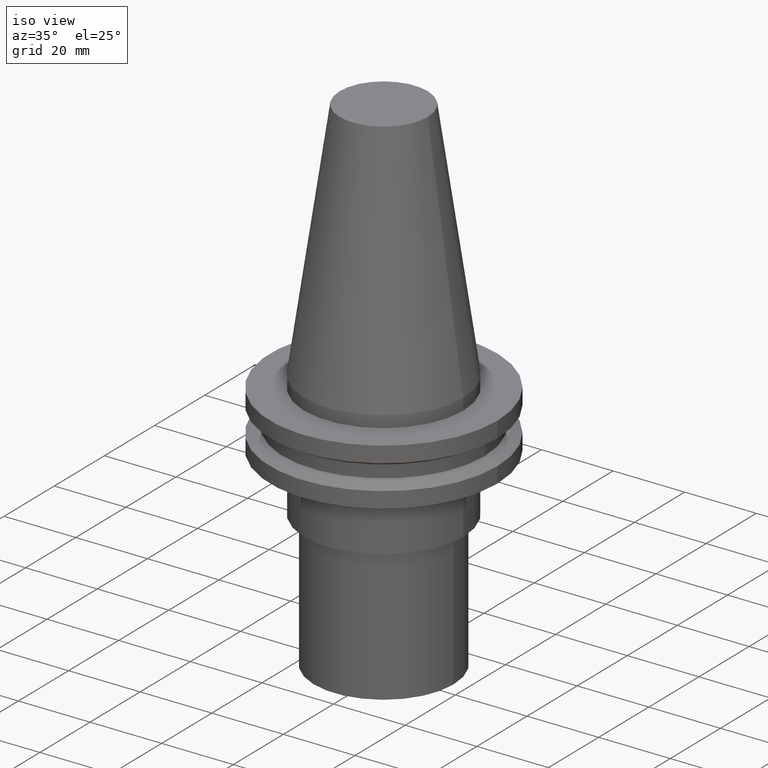
[diagram: clean part render]
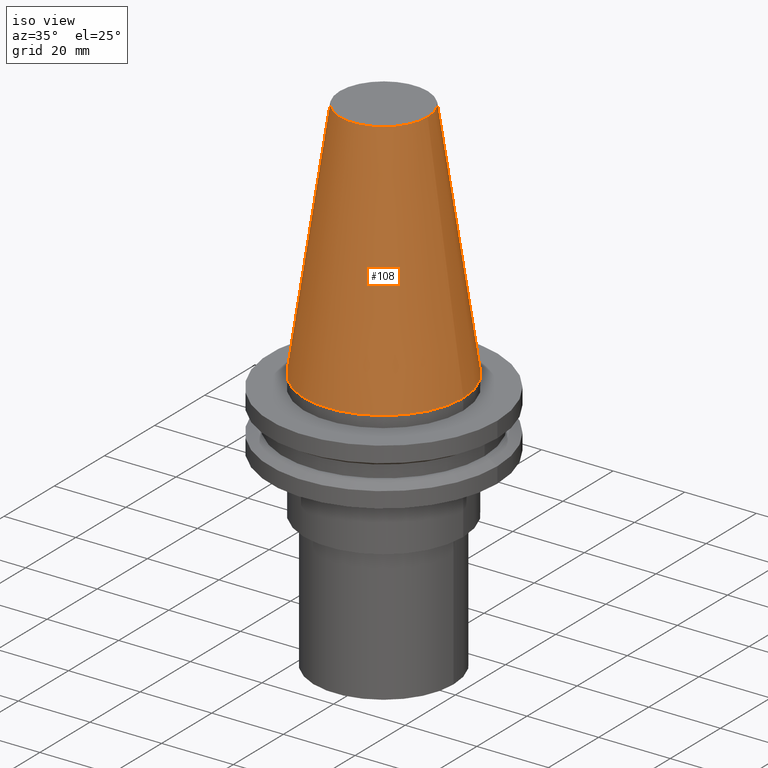
[diagram: tour spotlight — one face highlighted and labeled with its STEP entity id]
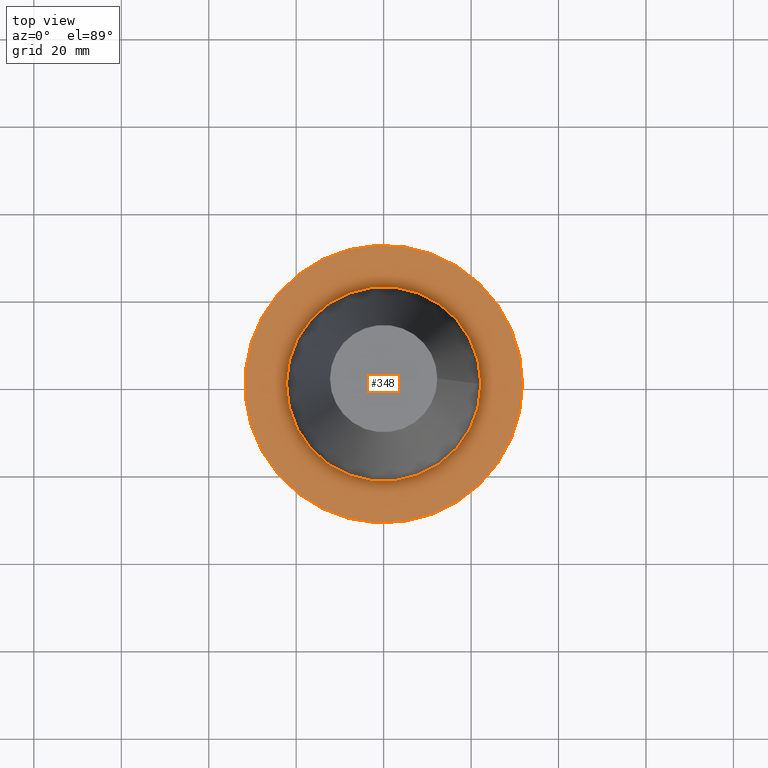
[diagram: tour spotlight — one face highlighted and labeled with its STEP entity id]
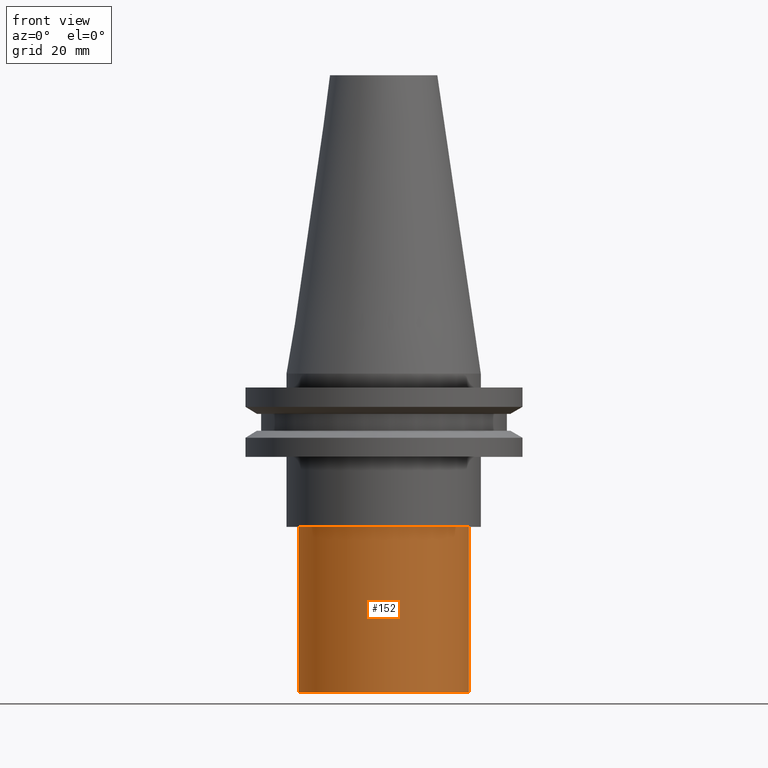
[diagram: tour spotlight — one face highlighted and labeled with its STEP entity id]
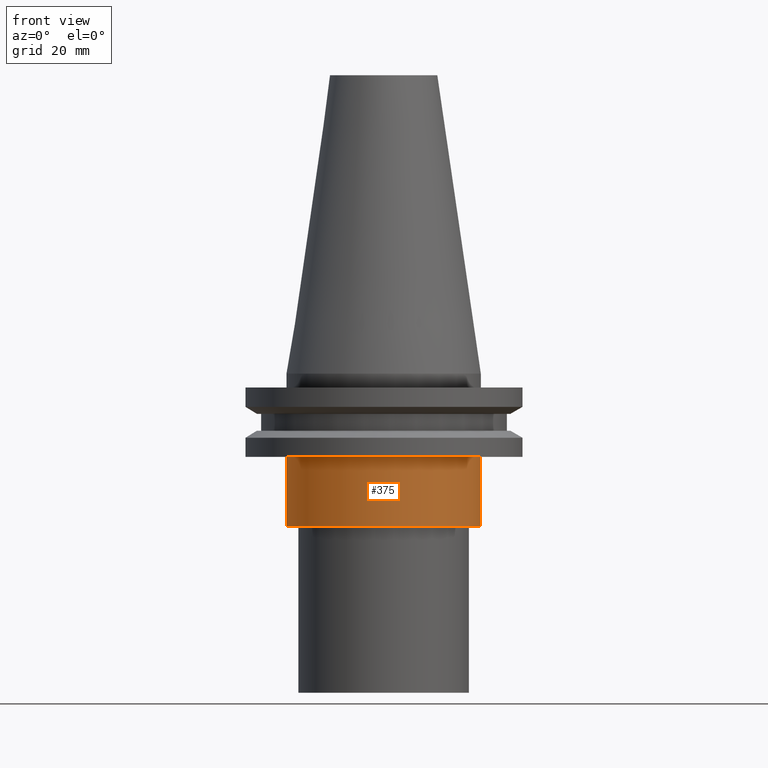
[diagram: tour spotlight — one face highlighted and labeled with its STEP entity id]
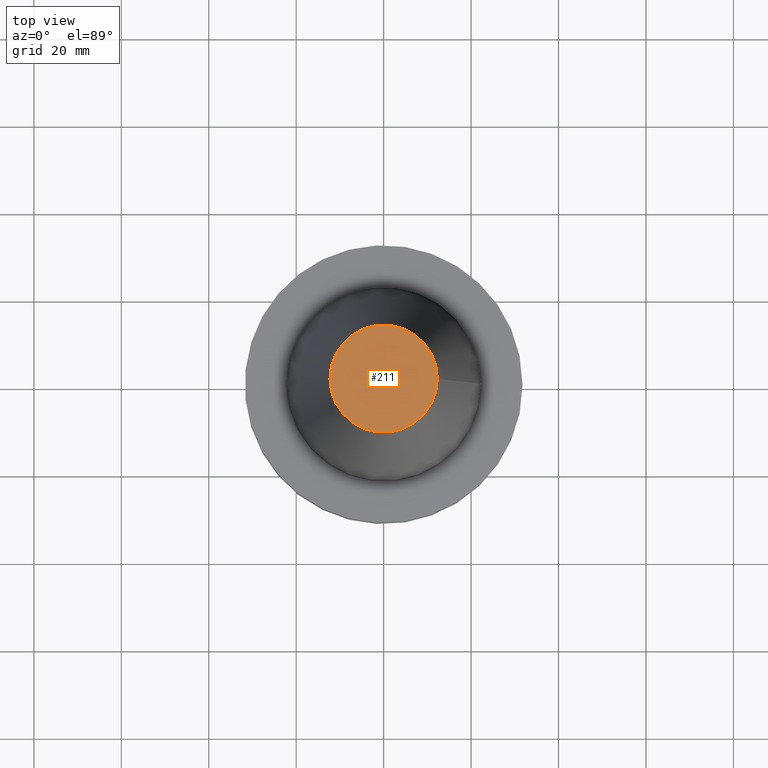
[diagram: tour spotlight — one face highlighted and labeled with its STEP entity id]
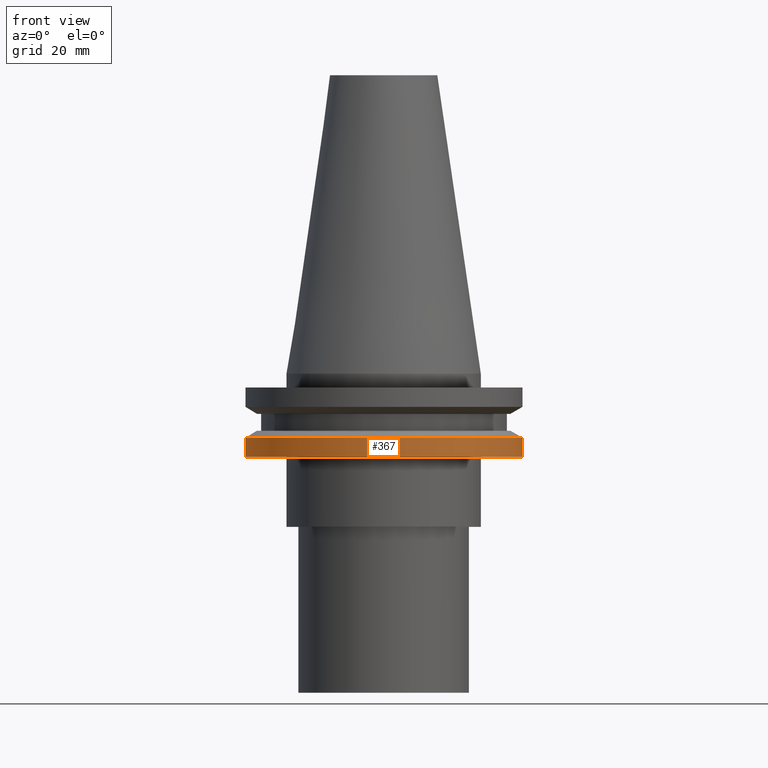
[diagram: tour spotlight — one face highlighted and labeled with its STEP entity id]
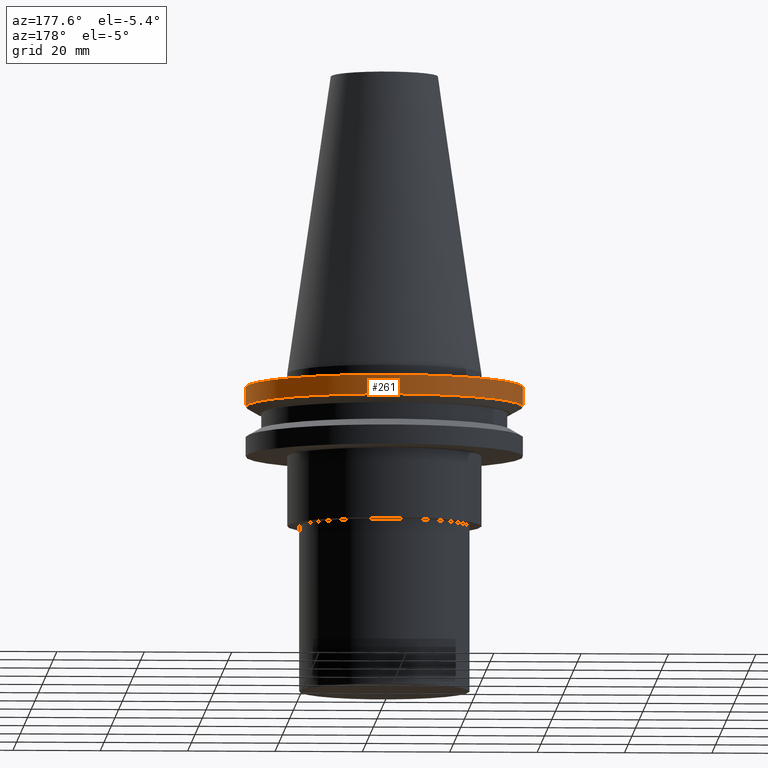
[diagram: tour spotlight — one face highlighted and labeled with its STEP entity id]
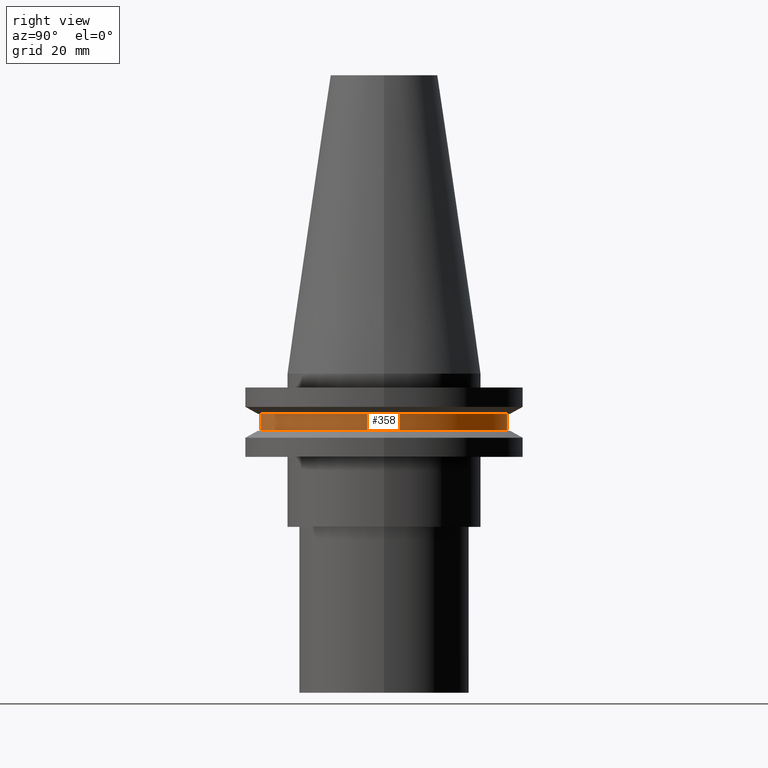
[diagram: tour spotlight — one face highlighted and labeled with its STEP entity id]
A machine part: a face-by-face anatomy tour. The part has 16 B-rep faces; the first image is the clean iso view, then the 8 largest visible faces are spotlighted one at a time (largest first), each with its STEP entity span.

Face 1 — iso view, entity #108. In plain terms, the highlighted conical surface has half-angle 8.297 deg.
Definition (entity closure, byte-faithful):
#2 = FACE_BOUND ( 'NONE', #115, .T. ) ;
#4 = DIRECTION ( 'NONE',  ( 0.000000000000000000, 0.000000000000000000, -1.000000000000000000 ) ) ;
#5 = CIRCLE ( 'NONE', #65, 12.27178102086201150 ) ;
#32 = CARTESIAN_POINT ( 'NONE',  ( 12.27178102086201150, 0.000000000000000000, 68.25000000000000000 ) ) ;
#51 = CONICAL_SURFACE ( 'NONE', #383, 22.22500000000000142, 0.1448138465474119174 ) ;
#65 = AXIS2_PLACEMENT_3D ( 'NONE', #220, #341, #69 ) ;
#69 = DIRECTION ( 'NONE',  ( 1.000000000000000000, 0.000000000000000000, 0.000000000000000000 ) ) ;
#82 = EDGE_LOOP ( 'NONE', ( #198 ) ) ;
#108 = ADVANCED_FACE ( 'NONE', ( #2, #275 ), #51, .T. ) ;
#115 = EDGE_LOOP ( 'NONE', ( #325 ) ) ;
#139 = VERTEX_POINT ( 'NONE', #171 ) ;
#151 = DIRECTION ( 'NONE',  ( -0.000000000000000000, -0.000000000000000000, 1.000000000000000000 ) ) ;
#164 = EDGE_CURVE ( 'NONE', #139, #139, #190, .T. ) ;
#165 = VERTEX_POINT ( 'NONE', #32 ) ;
#171 = CARTESIAN_POINT ( 'NONE',  ( 22.22500000000000142, 0.000000000000000000, 0.000000000000000000 ) ) ;
#190 = CIRCLE ( 'NONE', #393, 22.22500000000000142 ) ;
#198 = ORIENTED_EDGE ( 'NONE', *, *, #164, .T. ) ;
#210 = CARTESIAN_POINT ( 'NONE',  ( 0.000000000000000000, 0.000000000000000000, 0.000000000000000000 ) ) ;
#214 = DIRECTION ( 'NONE',  ( 1.000000000000000000, 0.000000000000000000, 0.000000000000000000 ) ) ;
#220 = CARTESIAN_POINT ( 'NONE',  ( 0.000000000000000000, 0.000000000000000000, 68.25000000000000000 ) ) ;
#230 = EDGE_CURVE ( 'NONE', #165, #165, #5, .T. ) ;
#248 = DIRECTION ( 'NONE',  ( -1.000000000000000000, 0.000000000000000000, 0.000000000000000000 ) ) ;
#275 = FACE_OUTER_BOUND ( 'NONE', #82, .T. ) ;
#325 = ORIENTED_EDGE ( 'NONE', *, *, #230, .F. ) ;
#341 = DIRECTION ( 'NONE',  ( -0.000000000000000000, -0.000000000000000000, 1.000000000000000000 ) ) ;
#366 = CARTESIAN_POINT ( 'NONE',  ( 0.000000000000000000, 0.000000000000000000, 0.000000000000000000 ) ) ;
#383 = AXIS2_PLACEMENT_3D ( 'NONE', #366, #4, #248 ) ;
#393 = AXIS2_PLACEMENT_3D ( 'NONE', #210, #151, #214 ) ;

Face 2 — top view, entity #348. In plain terms, the highlighted planar face has unit normal (0, 0, -1).
Definition (entity closure, byte-faithful):
#7 = DIRECTION ( 'NONE',  ( 1.000000000000000000, 0.000000000000000000, 0.000000000000000000 ) ) ;
#42 = CIRCLE ( 'NONE', #128, 31.75000000000000000 ) ;
#61 = EDGE_CURVE ( 'NONE', #324, #324, #42, .T. ) ;
#80 = EDGE_LOOP ( 'NONE', ( #231 ) ) ;
#99 = CIRCLE ( 'NONE', #308, 22.22500000000000142 ) ;
#104 = CARTESIAN_POINT ( 'NONE',  ( 0.000000000000000000, 0.000000000000000000, -3.174999999999997158 ) ) ;
#106 = FACE_BOUND ( 'NONE', #110, .T. ) ;
#110 = EDGE_LOOP ( 'NONE', ( #382 ) ) ;
#128 = AXIS2_PLACEMENT_3D ( 'NONE', #304, #184, #7 ) ;
#131 = FACE_OUTER_BOUND ( 'NONE', #80, .T. ) ;
#155 = AXIS2_PLACEMENT_3D ( 'NONE', #281, #376, #283 ) ;
#163 = DIRECTION ( 'NONE',  ( -0.000000000000000000, -0.000000000000000000, 1.000000000000000000 ) ) ;
#184 = DIRECTION ( 'NONE',  ( -0.000000000000000000, -0.000000000000000000, 1.000000000000000000 ) ) ;
#231 = ORIENTED_EDGE ( 'NONE', *, *, #61, .T. ) ;
#269 = CARTESIAN_POINT ( 'NONE',  ( 22.22500000000000142, 0.000000000000000000, -3.174999999999997158 ) ) ;
#281 = CARTESIAN_POINT ( 'NONE',  ( 0.000000000000000000, 31.75000000000000000, -3.174999999999993605 ) ) ;
#283 = DIRECTION ( 'NONE',  ( -1.000000000000000000, 0.000000000000000000, -0.000000000000000000 ) ) ;
#284 = PLANE ( 'NONE',  #155 ) ;
#304 = CARTESIAN_POINT ( 'NONE',  ( 0.000000000000000000, 0.000000000000000000, -3.174999999999997158 ) ) ;
#308 = AXIS2_PLACEMENT_3D ( 'NONE', #104, #163, #380 ) ;
#319 = CARTESIAN_POINT ( 'NONE',  ( 31.75000000000000000, 0.000000000000000000, -3.174999999999997158 ) ) ;
#324 = VERTEX_POINT ( 'NONE', #319 ) ;
#329 = EDGE_CURVE ( 'NONE', #381, #381, #99, .T. ) ;
#348 = ADVANCED_FACE ( 'NONE', ( #106, #131 ), #284, .F. ) ;
#376 = DIRECTION ( 'NONE',  ( 0.000000000000000000, 0.000000000000000000, -1.000000000000000000 ) ) ;
#380 = DIRECTION ( 'NONE',  ( 1.000000000000000000, 0.000000000000000000, 0.000000000000000000 ) ) ;
#381 = VERTEX_POINT ( 'NONE', #269 ) ;
#382 = ORIENTED_EDGE ( 'NONE', *, *, #329, .F. ) ;

Face 3 — front view, entity #152. In plain terms, the highlighted cylindrical surface (bore or boss wall) has radius 19.5 mm, axis along (-0, -0, 1).
Definition (entity closure, byte-faithful):
#12 = AXIS2_PLACEMENT_3D ( 'NONE', #288, #46, #253 ) ;
#19 = CIRCLE ( 'NONE', #299, 19.49999999999999289 ) ;
#35 = FACE_OUTER_BOUND ( 'NONE', #53, .T. ) ;
#46 = DIRECTION ( 'NONE',  ( -0.000000000000000000, -0.000000000000000000, 1.000000000000000000 ) ) ;
#53 = EDGE_LOOP ( 'NONE', ( #318 ) ) ;
#54 = VERTEX_POINT ( 'NONE', #111 ) ;
#64 = DIRECTION ( 'NONE',  ( 1.000000000000000000, 0.000000000000000000, 0.000000000000000000 ) ) ;
#97 = CARTESIAN_POINT ( 'NONE',  ( 0.000000000000000000, 0.000000000000000000, 0.000000000000000000 ) ) ;
#100 = EDGE_CURVE ( 'NONE', #54, #54, #19, .T. ) ;
#111 = CARTESIAN_POINT ( 'NONE',  ( 19.49999999999999289, 0.000000000000000000, -73.00000000000000000 ) ) ;
#152 = ADVANCED_FACE ( 'NONE', ( #35, #251 ), #364, .T. ) ;
#178 = DIRECTION ( 'NONE',  ( -0.000000000000000000, -0.000000000000000000, 1.000000000000000000 ) ) ;
#202 = CIRCLE ( 'NONE', #12, 19.49999999999999289 ) ;
#218 = EDGE_CURVE ( 'NONE', #267, #267, #202, .T. ) ;
#247 = AXIS2_PLACEMENT_3D ( 'NONE', #97, #310, #334 ) ;
#251 = FACE_OUTER_BOUND ( 'NONE', #297, .T. ) ;
#253 = DIRECTION ( 'NONE',  ( 1.000000000000000000, 0.000000000000000000, 0.000000000000000000 ) ) ;
#267 = VERTEX_POINT ( 'NONE', #355 ) ;
#278 = CARTESIAN_POINT ( 'NONE',  ( 0.000000000000000000, 0.000000000000000000, -73.00000000000000000 ) ) ;
#288 = CARTESIAN_POINT ( 'NONE',  ( 0.000000000000000000, 0.000000000000000000, -35.04999999999999716 ) ) ;
#297 = EDGE_LOOP ( 'NONE', ( #328 ) ) ;
#299 = AXIS2_PLACEMENT_3D ( 'NONE', #278, #178, #64 ) ;
#310 = DIRECTION ( 'NONE',  ( -0.000000000000000000, -0.000000000000000000, 1.000000000000000000 ) ) ;
#318 = ORIENTED_EDGE ( 'NONE', *, *, #218, .F. ) ;
#328 = ORIENTED_EDGE ( 'NONE', *, *, #100, .T. ) ;
#334 = DIRECTION ( 'NONE',  ( 1.000000000000000000, 0.000000000000000000, 0.000000000000000000 ) ) ;
#355 = CARTESIAN_POINT ( 'NONE',  ( 19.49999999999999289, 0.000000000000000000, -35.04999999999999716 ) ) ;
#364 = CYLINDRICAL_SURFACE ( 'NONE', #247, 19.49999999999999289 ) ;

Face 4 — front view, entity #375. In plain terms, the highlighted cylindrical surface (bore or boss wall) has radius 22.225 mm, axis along (-0, -0, 1).
Definition (entity closure, byte-faithful):
#6 = AXIS2_PLACEMENT_3D ( 'NONE', #21, #49, #29 ) ;
#11 = EDGE_CURVE ( 'NONE', #199, #199, #195, .T. ) ;
#21 = CARTESIAN_POINT ( 'NONE',  ( 0.000000000000000000, 0.000000000000000000, 68.25000000000000000 ) ) ;
#24 = FACE_OUTER_BOUND ( 'NONE', #354, .T. ) ;
#29 = DIRECTION ( 'NONE',  ( 1.000000000000000000, 0.000000000000000000, 0.000000000000000000 ) ) ;
#49 = DIRECTION ( 'NONE',  ( -0.000000000000000000, -0.000000000000000000, 1.000000000000000000 ) ) ;
#58 = AXIS2_PLACEMENT_3D ( 'NONE', #347, #316, #158 ) ;
#85 = CARTESIAN_POINT ( 'NONE',  ( 22.22500000000000142, 0.000000000000000000, -35.04999999999999716 ) ) ;
#118 = CYLINDRICAL_SURFACE ( 'NONE', #6, 22.22500000000000142 ) ;
#142 = CARTESIAN_POINT ( 'NONE',  ( 0.000000000000000000, 0.000000000000000000, -19.04999999999999716 ) ) ;
#158 = DIRECTION ( 'NONE',  ( 1.000000000000000000, 0.000000000000000000, 0.000000000000000000 ) ) ;
#169 = ORIENTED_EDGE ( 'NONE', *, *, #11, .F. ) ;
#195 = CIRCLE ( 'NONE', #343, 22.22500000000000142 ) ;
#199 = VERTEX_POINT ( 'NONE', #321 ) ;
#228 = CIRCLE ( 'NONE', #58, 22.22500000000000142 ) ;
#239 = EDGE_CURVE ( 'NONE', #389, #389, #228, .T. ) ;
#268 = ORIENTED_EDGE ( 'NONE', *, *, #239, .T. ) ;
#316 = DIRECTION ( 'NONE',  ( -0.000000000000000000, -0.000000000000000000, 1.000000000000000000 ) ) ;
#320 = DIRECTION ( 'NONE',  ( 1.000000000000000000, 0.000000000000000000, 0.000000000000000000 ) ) ;
#321 = CARTESIAN_POINT ( 'NONE',  ( 22.22500000000000142, 0.000000000000000000, -19.04999999999999716 ) ) ;
#326 = FACE_OUTER_BOUND ( 'NONE', #356, .T. ) ;
#343 = AXIS2_PLACEMENT_3D ( 'NONE', #142, #352, #320 ) ;
#347 = CARTESIAN_POINT ( 'NONE',  ( 0.000000000000000000, 0.000000000000000000, -35.04999999999999716 ) ) ;
#352 = DIRECTION ( 'NONE',  ( -0.000000000000000000, -0.000000000000000000, 1.000000000000000000 ) ) ;
#354 = EDGE_LOOP ( 'NONE', ( #169 ) ) ;
#356 = EDGE_LOOP ( 'NONE', ( #268 ) ) ;
#375 = ADVANCED_FACE ( 'NONE', ( #24, #326 ), #118, .T. ) ;
#389 = VERTEX_POINT ( 'NONE', #85 ) ;

Face 5 — top view, entity #211. In plain terms, the highlighted planar face has unit normal (0, 0, -1).
Definition (entity closure, byte-faithful):
#5 = CIRCLE ( 'NONE', #65, 12.27178102086201150 ) ;
#13 = PLANE ( 'NONE',  #264 ) ;
#25 = EDGE_LOOP ( 'NONE', ( #117 ) ) ;
#32 = CARTESIAN_POINT ( 'NONE',  ( 12.27178102086201150, 0.000000000000000000, 68.25000000000000000 ) ) ;
#65 = AXIS2_PLACEMENT_3D ( 'NONE', #220, #341, #69 ) ;
#69 = DIRECTION ( 'NONE',  ( 1.000000000000000000, 0.000000000000000000, 0.000000000000000000 ) ) ;
#109 = FACE_OUTER_BOUND ( 'NONE', #25, .T. ) ;
#117 = ORIENTED_EDGE ( 'NONE', *, *, #230, .T. ) ;
#165 = VERTEX_POINT ( 'NONE', #32 ) ;
#211 = ADVANCED_FACE ( 'NONE', ( #109 ), #13, .F. ) ;
#220 = CARTESIAN_POINT ( 'NONE',  ( 0.000000000000000000, 0.000000000000000000, 68.25000000000000000 ) ) ;
#230 = EDGE_CURVE ( 'NONE', #165, #165, #5, .T. ) ;
#264 = AXIS2_PLACEMENT_3D ( 'NONE', #373, #379, #315 ) ;
#315 = DIRECTION ( 'NONE',  ( -1.000000000000000000, 0.000000000000000000, -0.000000000000000000 ) ) ;
#341 = DIRECTION ( 'NONE',  ( -0.000000000000000000, -0.000000000000000000, 1.000000000000000000 ) ) ;
#373 = CARTESIAN_POINT ( 'NONE',  ( 0.000000000000000000, 12.27178102086201150, 68.25000000000000000 ) ) ;
#379 = DIRECTION ( 'NONE',  ( 0.000000000000000000, 0.000000000000000000, -1.000000000000000000 ) ) ;

Face 6 — front view, entity #367. In plain terms, the highlighted cylindrical surface (bore or boss wall) has radius 31.75 mm, axis along (-0, -0, 1).
Definition (entity closure, byte-faithful):
#28 = ORIENTED_EDGE ( 'NONE', *, *, #73, .T. ) ;
#36 = CIRCLE ( 'NONE', #212, 31.75000000000000000 ) ;
#40 = EDGE_CURVE ( 'NONE', #353, #353, #36, .T. ) ;
#73 = EDGE_CURVE ( 'NONE', #294, #294, #357, .T. ) ;
#74 = CYLINDRICAL_SURFACE ( 'NONE', #371, 31.75000000000000000 ) ;
#86 = EDGE_LOOP ( 'NONE', ( #207 ) ) ;
#167 = CARTESIAN_POINT ( 'NONE',  ( 31.75000000000000000, 0.000000000000000000, -14.65472339340266572 ) ) ;
#193 = CARTESIAN_POINT ( 'NONE',  ( 0.000000000000000000, 0.000000000000000000, 68.25000000000000000 ) ) ;
#204 = DIRECTION ( 'NONE',  ( 1.000000000000000000, 0.000000000000000000, 0.000000000000000000 ) ) ;
#205 = DIRECTION ( 'NONE',  ( -0.000000000000000000, -0.000000000000000000, 1.000000000000000000 ) ) ;
#207 = ORIENTED_EDGE ( 'NONE', *, *, #40, .F. ) ;
#212 = AXIS2_PLACEMENT_3D ( 'NONE', #238, #205, #387 ) ;
#223 = FACE_OUTER_BOUND ( 'NONE', #86, .T. ) ;
#238 = CARTESIAN_POINT ( 'NONE',  ( 0.000000000000000000, 0.000000000000000000, -14.65472339340266572 ) ) ;
#243 = DIRECTION ( 'NONE',  ( 1.000000000000000000, 0.000000000000000000, 0.000000000000000000 ) ) ;
#252 = AXIS2_PLACEMENT_3D ( 'NONE', #362, #307, #243 ) ;
#285 = DIRECTION ( 'NONE',  ( -0.000000000000000000, -0.000000000000000000, 1.000000000000000000 ) ) ;
#294 = VERTEX_POINT ( 'NONE', #394 ) ;
#307 = DIRECTION ( 'NONE',  ( -0.000000000000000000, -0.000000000000000000, 1.000000000000000000 ) ) ;
#345 = FACE_OUTER_BOUND ( 'NONE', #360, .T. ) ;
#353 = VERTEX_POINT ( 'NONE', #167 ) ;
#357 = CIRCLE ( 'NONE', #252, 31.74999999999999289 ) ;
#360 = EDGE_LOOP ( 'NONE', ( #28 ) ) ;
#362 = CARTESIAN_POINT ( 'NONE',  ( 0.000000000000000000, 0.000000000000000000, -19.04999999999999716 ) ) ;
#367 = ADVANCED_FACE ( 'NONE', ( #223, #345 ), #74, .T. ) ;
#371 = AXIS2_PLACEMENT_3D ( 'NONE', #193, #285, #204 ) ;
#387 = DIRECTION ( 'NONE',  ( 1.000000000000000000, 0.000000000000000000, 0.000000000000000000 ) ) ;
#394 = CARTESIAN_POINT ( 'NONE',  ( 31.74999999999999289, 0.000000000000000000, -19.04999999999999716 ) ) ;

Face 7 — auxiliary view, entity #261. In plain terms, the highlighted cylindrical surface (bore or boss wall) has radius 31.75 mm, axis along (-0, -0, 1).
Definition (entity closure, byte-faithful):
#7 = DIRECTION ( 'NONE',  ( 1.000000000000000000, 0.000000000000000000, 0.000000000000000000 ) ) ;
#17 = CYLINDRICAL_SURFACE ( 'NONE', #330, 31.75000000000000000 ) ;
#18 = DIRECTION ( 'NONE',  ( 1.000000000000000000, 0.000000000000000000, 0.000000000000000000 ) ) ;
#42 = CIRCLE ( 'NONE', #128, 31.75000000000000000 ) ;
#61 = EDGE_CURVE ( 'NONE', #324, #324, #42, .T. ) ;
#103 = DIRECTION ( 'NONE',  ( 1.000000000000000000, 0.000000000000000000, 0.000000000000000000 ) ) ;
#112 = AXIS2_PLACEMENT_3D ( 'NONE', #224, #311, #18 ) ;
#113 = EDGE_LOOP ( 'NONE', ( #175 ) ) ;
#128 = AXIS2_PLACEMENT_3D ( 'NONE', #304, #184, #7 ) ;
#159 = DIRECTION ( 'NONE',  ( -0.000000000000000000, -0.000000000000000000, 1.000000000000000000 ) ) ;
#175 = ORIENTED_EDGE ( 'NONE', *, *, #61, .F. ) ;
#184 = DIRECTION ( 'NONE',  ( -0.000000000000000000, -0.000000000000000000, 1.000000000000000000 ) ) ;
#186 = FACE_OUTER_BOUND ( 'NONE', #233, .T. ) ;
#196 = ORIENTED_EDGE ( 'NONE', *, *, #282, .T. ) ;
#224 = CARTESIAN_POINT ( 'NONE',  ( 0.000000000000000000, 0.000000000000000000, -7.605276606597335842 ) ) ;
#233 = EDGE_LOOP ( 'NONE', ( #196 ) ) ;
#234 = CARTESIAN_POINT ( 'NONE',  ( 31.75000000000000000, 0.000000000000000000, -7.605276606597335842 ) ) ;
#255 = FACE_OUTER_BOUND ( 'NONE', #113, .T. ) ;
#257 = CIRCLE ( 'NONE', #112, 31.75000000000000000 ) ;
#261 = ADVANCED_FACE ( 'NONE', ( #255, #186 ), #17, .T. ) ;
#282 = EDGE_CURVE ( 'NONE', #351, #351, #257, .T. ) ;
#304 = CARTESIAN_POINT ( 'NONE',  ( 0.000000000000000000, 0.000000000000000000, -3.174999999999997158 ) ) ;
#311 = DIRECTION ( 'NONE',  ( -0.000000000000000000, -0.000000000000000000, 1.000000000000000000 ) ) ;
#319 = CARTESIAN_POINT ( 'NONE',  ( 31.75000000000000000, 0.000000000000000000, -3.174999999999997158 ) ) ;
#324 = VERTEX_POINT ( 'NONE', #319 ) ;
#330 = AXIS2_PLACEMENT_3D ( 'NONE', #374, #159, #103 ) ;
#351 = VERTEX_POINT ( 'NONE', #234 ) ;
#374 = CARTESIAN_POINT ( 'NONE',  ( 0.000000000000000000, 0.000000000000000000, 68.25000000000000000 ) ) ;

Face 8 — right view, entity #358. In plain terms, the highlighted cylindrical surface (bore or boss wall) has radius 28.18 mm, axis along (-0, -0, 1).
Definition (entity closure, byte-faithful):
#9 = DIRECTION ( 'NONE',  ( -0.000000000000000000, -0.000000000000000000, 1.000000000000000000 ) ) ;
#15 = FACE_OUTER_BOUND ( 'NONE', #286, .T. ) ;
#41 = CARTESIAN_POINT ( 'NONE',  ( 0.000000000000000000, 0.000000000000000000, -13.05499999999999794 ) ) ;
#60 = CARTESIAN_POINT ( 'NONE',  ( 0.000000000000000000, 0.000000000000000000, -9.204999999999991189 ) ) ;
#71 = DIRECTION ( 'NONE',  ( -0.000000000000000000, -0.000000000000000000, 1.000000000000000000 ) ) ;
#76 = AXIS2_PLACEMENT_3D ( 'NONE', #60, #9, #101 ) ;
#83 = AXIS2_PLACEMENT_3D ( 'NONE', #41, #226, #161 ) ;
#101 = DIRECTION ( 'NONE',  ( 1.000000000000000000, 0.000000000000000000, 0.000000000000000000 ) ) ;
#102 = CARTESIAN_POINT ( 'NONE',  ( 0.000000000000000000, 0.000000000000000000, 68.25000000000000000 ) ) ;
#116 = CARTESIAN_POINT ( 'NONE',  ( 28.17999999999999972, 0.000000000000000000, -9.204999999999991189 ) ) ;
#129 = CYLINDRICAL_SURFACE ( 'NONE', #313, 28.17999999999999972 ) ;
#130 = EDGE_CURVE ( 'NONE', #232, #232, #377, .T. ) ;
#161 = DIRECTION ( 'NONE',  ( 1.000000000000000000, 0.000000000000000000, 0.000000000000000000 ) ) ;
#172 = ORIENTED_EDGE ( 'NONE', *, *, #289, .T. ) ;
#173 = CARTESIAN_POINT ( 'NONE',  ( 28.17999999999999972, 0.000000000000000000, -13.05499999999999794 ) ) ;
#192 = DIRECTION ( 'NONE',  ( 1.000000000000000000, 0.000000000000000000, 0.000000000000000000 ) ) ;
#226 = DIRECTION ( 'NONE',  ( -0.000000000000000000, -0.000000000000000000, 1.000000000000000000 ) ) ;
#227 = ORIENTED_EDGE ( 'NONE', *, *, #130, .F. ) ;
#232 = VERTEX_POINT ( 'NONE', #116 ) ;
#256 = FACE_OUTER_BOUND ( 'NONE', #270, .T. ) ;
#270 = EDGE_LOOP ( 'NONE', ( #172 ) ) ;
#286 = EDGE_LOOP ( 'NONE', ( #227 ) ) ;
#289 = EDGE_CURVE ( 'NONE', #290, #290, #339, .T. ) ;
#290 = VERTEX_POINT ( 'NONE', #173 ) ;
#313 = AXIS2_PLACEMENT_3D ( 'NONE', #102, #71, #192 ) ;
#339 = CIRCLE ( 'NONE', #83, 28.17999999999999972 ) ;
#358 = ADVANCED_FACE ( 'NONE', ( #15, #256 ), #129, .T. ) ;
#377 = CIRCLE ( 'NONE', #76, 28.17999999999999972 ) ;